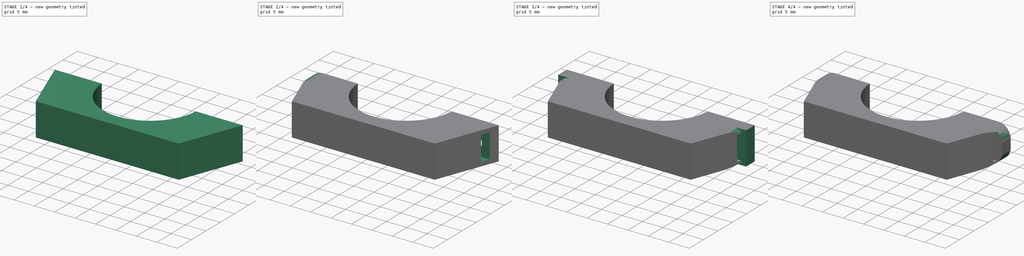
[diagram: build sequence overview — one tinted view per stage of 4, left to right]
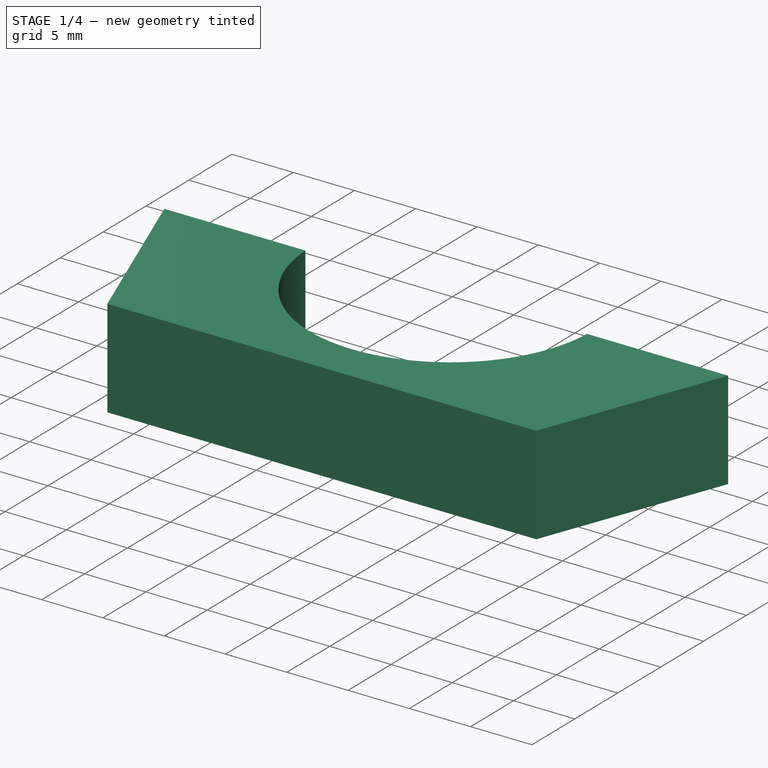
[diagram: stage 1 of 4 — iso view after this stage's code; geometry added in this stage tinted green]
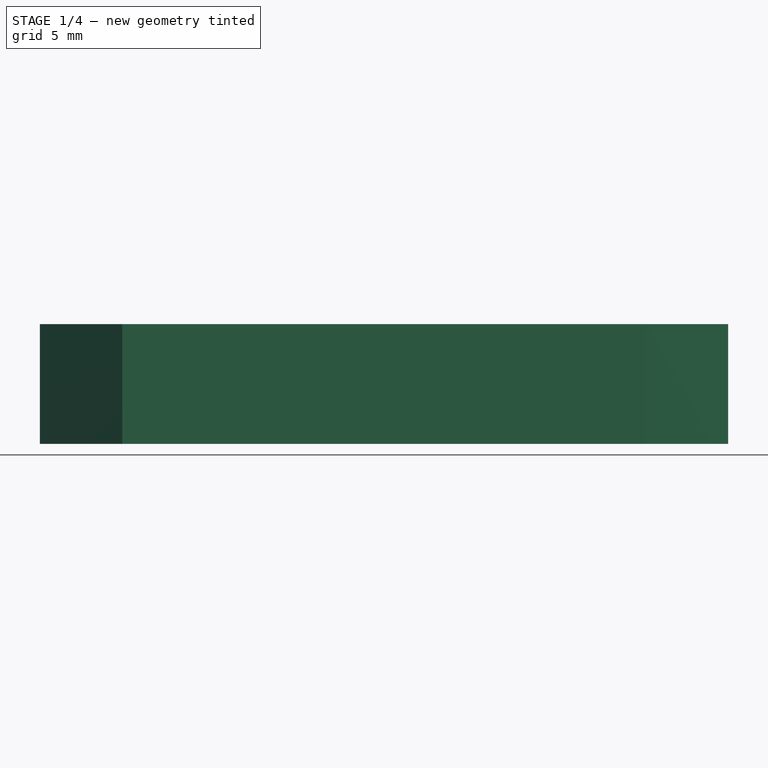
[diagram: stage 1 of 4 — front view after this stage's code; geometry added in this stage tinted green]
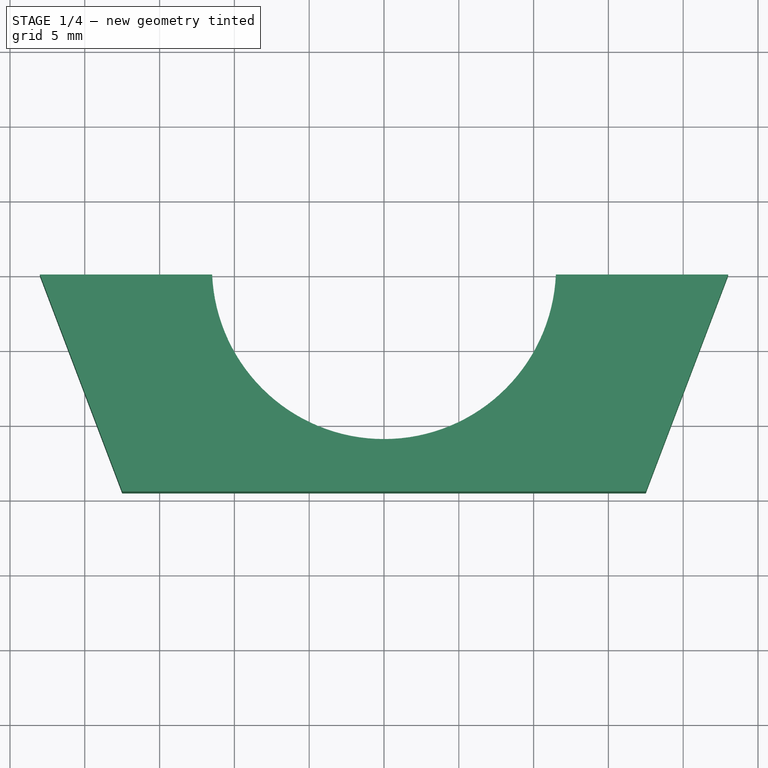
[diagram: stage 1 of 4 — top view after this stage's code; geometry added in this stage tinted green]
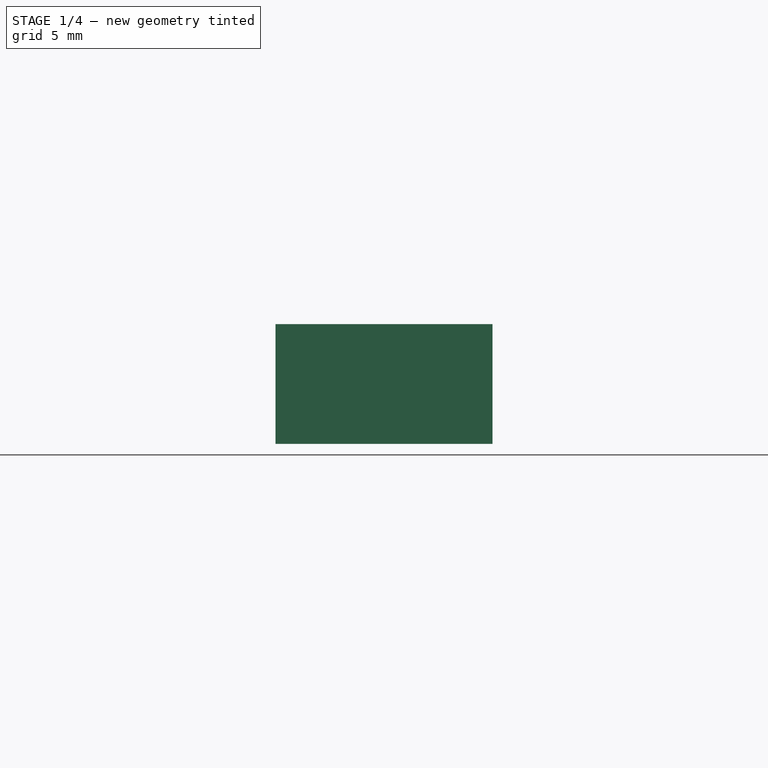
[diagram: stage 1 of 4 — right view after this stage's code; geometry added in this stage tinted green]
FCSTD DOCUMENT  (FreeCAD 0.18R4 (GitTag))
Label: handlebar clamp
License: All rights reserved
LicenseURL: http://en.wikipedia.org/wiki/All_rights_reserved
objects: Sketcher::SketchObject×10, PartDesign::Pocket×8, PartDesign::Pad×2, PartDesign::Body×2, PartDesign::Fillet×1
note: 33 computed .brp shape members not serialized (recipe doc carries the construction recipe); baked Part::Feature solids carry a one-line shape summary decoded from their .brp

FEATURE [PartDesign::Body] Body  label="lower"
  Group = -> [Sketch,Pad,Sketch001,Pocket,Sketch002,Pocket001,Fillet]
  Origin = -> Origin
  Placement = pos=(0,0,0) rot=(0,0,1;3.14159rad)
  Tip = -> Fillet
FEATURE [Sketcher::SketchObject] Sketch003
  MapMode = 5
  Support = -> [XY_Plane001]
  expr: Constraints[22] = Constraints[0] / 2 + 3mm
  expr: Constraints[17] = Sketch.Constraints[35]
  expr: Constraints[0] = Sketch.Constraints[0]
  expr: Constraints[6] = Sketch.Constraints[6]
  expr: Constraints[2] = Sketch.Constraints[2]
  sketch-geometry (9):
    g0: Circle [constr] CenterX=0 CenterY=0.5 CenterZ=0 NormalX=0 NormalY=0 NormalZ=1 AngleXU=0 Radius=11.5
    g1: LineSegment [constr] StartX=-23 StartY=11.5 StartZ=0 EndX=-23 EndY=-11.5 EndZ=0
    g2: LineSegment [constr] StartX=23 StartY=11.5 StartZ=0 EndX=23 EndY=-11.5 EndZ=0
    g3: LineSegment StartX=-11.4891 StartY=0 StartZ=0 EndX=-23 EndY=0 EndZ=0
    g4: LineSegment StartX=11.4891 StartY=2.5e-15 StartZ=0 EndX=23 EndY=2.5e-15 EndZ=0
    g5: ArcOfCircle CenterX=0 CenterY=0.5 CenterZ=0 NormalX=0 NormalY=0 NormalZ=1 AngleXU=0 Radius=11.5 StartAngle=3.18508 EndAngle=6.23969
    g6: LineSegment StartX=-23 StartY=0 StartZ=0 EndX=-17.5 EndY=-14.5 EndZ=0
    g7: LineSegment StartX=23 StartY=2.5e-15 StartZ=0 EndX=17.5 EndY=-14.5 EndZ=0
    g8: LineSegment StartX=17.5 StartY=-14.5 StartZ=0 EndX=-17.5 EndY=-14.5 EndZ=0
  constraints (26):
    c: Diameter(g0) = 23
    c: Vertical(g1)
    c: DistanceX(g1,g-1) = 23
    c: Horizontal(g1,g2)
    c: Symmetric(g1,g2,g-1)
    c: Symmetric(g1,g2,g-1)
    c: DistanceY(g2,g2) = 23
    c: PointOnObject(g3,g0)
    c: PointOnObject(g3,g1)
    c: Horizontal(g3)
    c: PointOnObject(g3,g-1)
    c: PointOnObject(g4,g2)
    c: PointOnObject(g4,g-1)
    c: Horizontal(g4)
    c: Coincident(g5,g0)
    c: Coincident(g5,g3)
    c: Coincident(g5,g4)
    c: DistanceY(g-1,g5) = 0.5
    c: Coincident(g6,g3)
    c: Coincident(g7,g4)
    c: Coincident(g8,g7)
    c: Coincident(g8,g6)
    c: DistanceY(g7,g7) = 14.5
    c: DistanceX(g8,g8) = 35
    c: Symmetric(g7,g6,g-2)
    c: Vertical(g5,g-1)
FEATURE [PartDesign::Pad] Pad001
  Length = 8
  Length2 = 100
  Profile = -> Sketch003
  Refine = true
  Type = 0
FEATURE [Sketcher::SketchObject] Sketch004
  ExternalGeometry = -> [Pad001]
  MapMode = 5
  Placement = pos=(0,2.5e-15,0) rot=(0,0.707107,0.707107;3.14159rad)
  Support = -> [Pad001]
  sketch-geometry (7):
    g0: LineSegment [constr] StartX=23 StartY=8 StartZ=0 EndX=14.07 EndY=8 EndZ=0
    g1: LineSegment [constr] StartX=14.07 StartY=8 StartZ=0 EndX=14.07 EndY=0 EndZ=0
    g2: LineSegment [constr] StartX=14.07 StartY=0 StartZ=0 EndX=23 EndY=0 EndZ=0
    g3: LineSegment [constr] StartX=23 StartY=0 StartZ=0 EndX=23 EndY=8 EndZ=0
    g4: LineSegment [constr] StartX=14.07 StartY=8 StartZ=0 EndX=23 EndY=0 EndZ=0
    g5: LineSegment [constr] StartX=23 StartY=8 StartZ=0 EndX=14.07 EndY=0 EndZ=0
    g6: Circle CenterX=18.535 CenterY=4 CenterZ=0 NormalX=0 NormalY=0 NormalZ=1 AngleXU=0 Radius=1.75
  constraints (18):
    c: Coincident(g0,g1)
    c: Coincident(g1,g2)
    c: Coincident(g2,g3)
    c: Coincident(g3,g0)
    c: Horizontal(g0)
    c: Horizontal(g2)
    c: Vertical(g1)
    c: Vertical(g3)
    c: Coincident(g0,g-3)
    c: PointOnObject(g1,g-1)
    c: DistanceX(g0,g0) = 8.93
    c: Coincident(g4,g0)
    c: Coincident(g4,g2)
    c: Coincident(g5,g0)
    c: Coincident(g5,g1)
    c: PointOnObject(g6,g4)
    c: PointOnObject(g6,g5)
    c: Diameter(g6) = 3.5
FEATURE [Sketcher::SketchObject] Sketch005
  ExternalGeometry = -> [Pad001]
  MapMode = 5
  Placement = pos=(0,2.5e-15,0) rot=(0,0.707107,0.707107;3.14159rad)
  Support = -> [Pad001]
  sketch-geometry (7):
    g0: LineSegment [constr] StartX=-23 StartY=8 StartZ=0 EndX=-14.07 EndY=8 EndZ=0
    g1: LineSegment [constr] StartX=-14.07 StartY=8 StartZ=0 EndX=-14.07 EndY=0 EndZ=0
    g2: LineSegment [constr] StartX=-14.07 StartY=0 StartZ=0 EndX=-23 EndY=0 EndZ=0
    g3: LineSegment [constr] StartX=-23 StartY=0 StartZ=0 EndX=-23 EndY=8 EndZ=0
    g4: LineSegment [constr] StartX=-23 StartY=8 StartZ=0 EndX=-14.07 EndY=0 EndZ=0
    g5: LineSegment [constr] StartX=-23 StartY=0 StartZ=0 EndX=-14.07 EndY=8 EndZ=0
    g6: Circle CenterX=-18.535 CenterY=4 CenterZ=0 NormalX=0 NormalY=0 NormalZ=1 AngleXU=0 Radius=1.75
  constraints (18):
    c: Coincident(g0,g1)
    c: Coincident(g1,g2)
    c: Coincident(g2,g3)
    c: Coincident(g3,g0)
    c: Horizontal(g0)
    c: Horizontal(g2)
    c: Vertical(g1)
    c: Vertical(g3)
    c: Coincident(g0,g-3)
    c: PointOnObject(g1,g-1)
    c: DistanceX(g0,g0) = 8.93
    c: Coincident(g4,g0)
    c: Coincident(g4,g1)
    c: Coincident(g5,g2)
    c: Coincident(g5,g0)
    c: PointOnObject(g6,g4)
    c: PointOnObject(g6,g5)
    c: Diameter(g6) = 3.5
FEATURE [PartDesign::Pocket] Pocket002
  BaseFeature = -> Pad001
  Length = 5
  Length2 = 100
  Profile = -> Sketch004
  Refine = true
  Type = 0
FEATURE [PartDesign::Pocket] Pocket003
  BaseFeature = -> Pocket002
  Length = 5
  Length2 = 100
  Profile = -> Sketch005
  Refine = true
  Type = 0
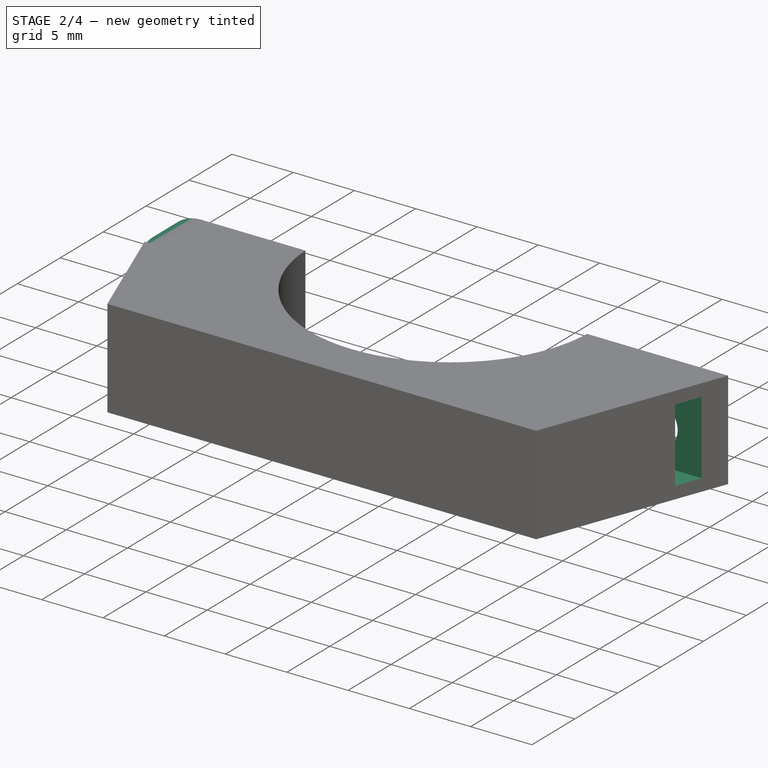
[diagram: stage 2 of 4 — iso view after this stage's code; geometry added in this stage tinted green]
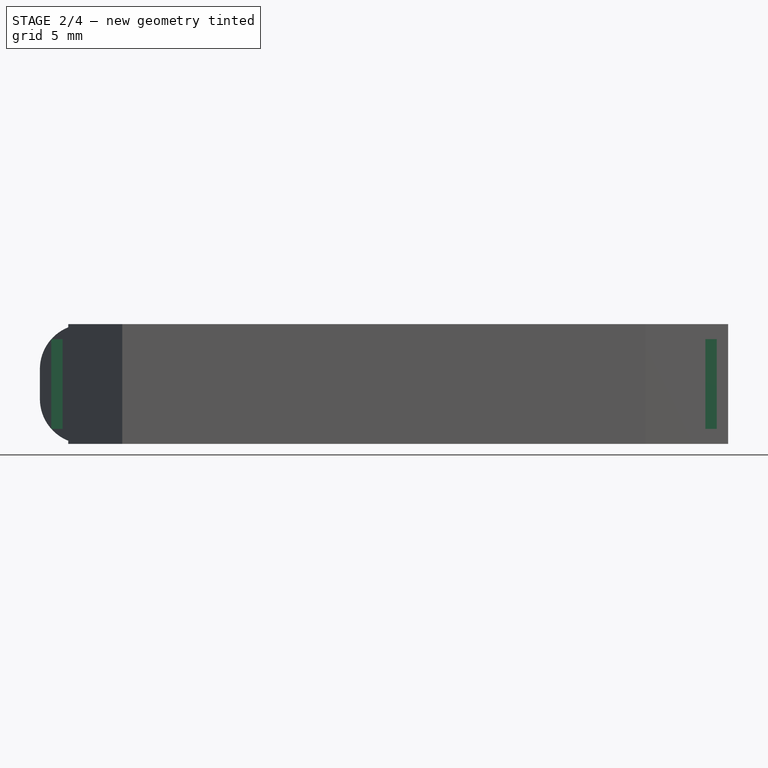
[diagram: stage 2 of 4 — front view after this stage's code; geometry added in this stage tinted green]
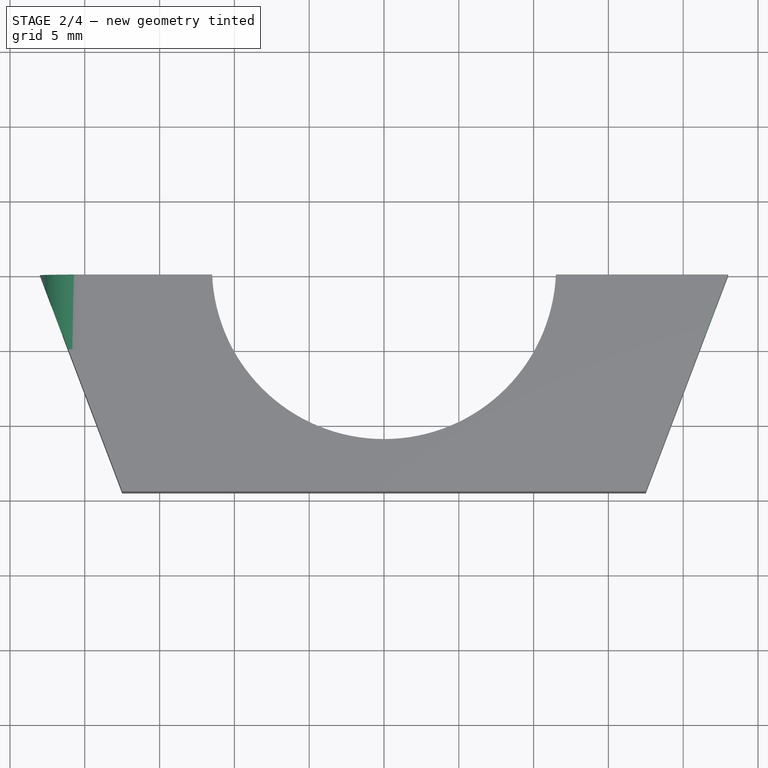
[diagram: stage 2 of 4 — top view after this stage's code; geometry added in this stage tinted green]
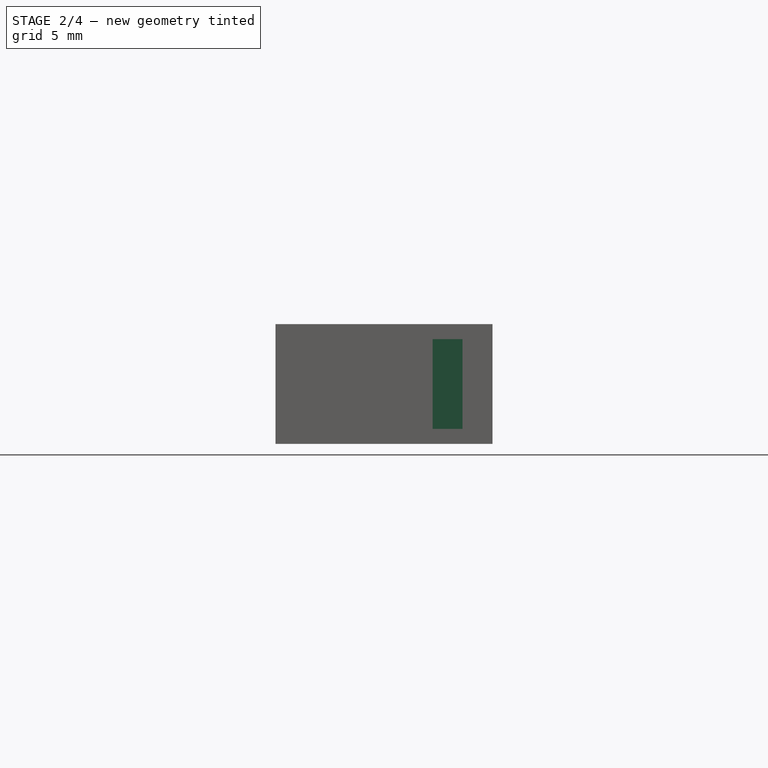
[diagram: stage 2 of 4 — right view after this stage's code; geometry added in this stage tinted green]
FEATURE [Sketcher::SketchObject] Sketch006
  AttachmentOffset = pos=(0,0,-18.5) rot=(0,0,1;0rad)
  ExternalGeometry = -> [Pocket003]
  MapMode = 5
  Placement = pos=(-18.5,4.1e-15,-4.1e-15) rot=(0.57735,0.57735,0.57735;2.0944rad)
  Support = -> [YZ_Plane001]
  sketch-geometry (4):
    g0: LineSegment StartX=-4 StartY=7 StartZ=0 EndX=-2 EndY=7 EndZ=0
    g1: LineSegment StartX=-2 StartY=7 StartZ=0 EndX=-2 EndY=1 EndZ=0
    g2: LineSegment StartX=-2 StartY=1 StartZ=0 EndX=-4 EndY=1 EndZ=0
    g3: LineSegment StartX=-4 StartY=1 StartZ=0 EndX=-4 EndY=7 EndZ=0
  constraints (12):
    c: Coincident(g0,g1)
    c: Coincident(g1,g2)
    c: Coincident(g2,g3)
    c: Coincident(g3,g0)
    c: Horizontal(g0)
    c: Horizontal(g2)
    c: Vertical(g1)
    c: Vertical(g3)
    c: DistanceY(g1,g1) = 6
    c: DistanceX(g0,g0) = 2
    c: DistanceY(g-1,g1) = 1
    c: DistanceX(g1,g-1) = 2
FEATURE [Sketcher::SketchObject] Sketch007
  AttachmentOffset = pos=(0,0,18.5) rot=(0,0,1;0rad)
  ExternalGeometry = -> [Pocket003]
  MapMode = 5
  Placement = pos=(18.5,-4.1e-15,4.1e-15) rot=(0.57735,0.57735,0.57735;2.0944rad)
  Support = -> [YZ_Plane001]
  expr: Constraints[10] = Sketch006.Constraints[10]
  expr: Constraints[9] = Sketch006.Constraints[9]
  expr: Constraints[8] = Sketch006.Constraints[8]
  sketch-geometry (4):
    g0: LineSegment StartX=-4 StartY=7 StartZ=0 EndX=-2 EndY=7 EndZ=0
    g1: LineSegment StartX=-2 StartY=7 StartZ=0 EndX=-2 EndY=1 EndZ=0
    g2: LineSegment StartX=-2 StartY=1 StartZ=0 EndX=-4 EndY=1 EndZ=0
    g3: LineSegment StartX=-4 StartY=1 StartZ=0 EndX=-4 EndY=7 EndZ=0
  constraints (12):
    c: Coincident(g0,g1)
    c: Coincident(g1,g2)
    c: Coincident(g2,g3)
    c: Coincident(g3,g0)
    c: Horizontal(g0)
    c: Horizontal(g2)
    c: Vertical(g1)
    c: Vertical(g3)
    c: DistanceY(g1,g1) = 6
    c: DistanceX(g0,g0) = 2
    c: DistanceY(g-1,g1) = 1
    c: DistanceX(g1,g-1) = 2
FEATURE [PartDesign::Pocket] Pocket004
  BaseFeature = -> Pocket003
  Length = 6
  Length2 = 3
  Profile = -> Sketch006
  Refine = true
  Type = 4
FEATURE [PartDesign::Pocket] Pocket005
  BaseFeature = -> Pocket004
  Length = 3
  Length2 = 6
  Profile = -> Sketch007
  Refine = true
  Type = 4
FEATURE [Sketcher::SketchObject] Sketch008
  ExternalGeometry = -> [Pocket005]
  MapMode = 5
  Placement = pos=(0,2.5e-15,0) rot=(0,0.707107,0.707107;3.14159rad)
  Support = -> [Pocket005]
  sketch-geometry (10):
    g0: ArcOfCircle CenterX=20 CenterY=5 CenterZ=0 NormalX=0 NormalY=0 NormalZ=1 AngleXU=0 Radius=3 StartAngle=0 EndAngle=1.5708
    g1: LineSegment StartX=23 StartY=5 StartZ=0 EndX=25 EndY=5 EndZ=0
    g2: LineSegment StartX=25 StartY=5 StartZ=0 EndX=25 EndY=10 EndZ=0
    g3: LineSegment StartX=25 StartY=10 StartZ=0 EndX=20 EndY=10 EndZ=0
    g4: LineSegment StartX=20 StartY=10 StartZ=0 EndX=20 EndY=8 EndZ=0
    g5: ArcOfCircle CenterX=20 CenterY=3 CenterZ=0 NormalX=0 NormalY=0 NormalZ=1 AngleXU=0 Radius=3 StartAngle=4.71239 EndAngle=6.28319
    g6: LineSegment StartX=23 StartY=3 StartZ=0 EndX=25 EndY=3 EndZ=0
    g7: LineSegment StartX=25 StartY=3 StartZ=0 EndX=25 EndY=-2 EndZ=0
    g8: LineSegment StartX=25 StartY=-2 StartZ=0 EndX=20 EndY=-2 EndZ=0
    g9: LineSegment StartX=20 StartY=-2 StartZ=0 EndX=20 EndY=0 EndZ=0
  constraints (32):
    c: PointOnObject(g0,g-3)
    c: Vertical(g0,g0)
    c: Horizontal(g0,g0)
    c: Vertical(g0,g-3)
    c: Coincident(g1,g0)
    c: Horizontal(g1)
    c: Coincident(g2,g1)
    c: Vertical(g2)
    c: Coincident(g3,g2)
    c: Horizontal(g3)
    c: Coincident(g4,g3)
    c: Coincident(g4,g0)
    c: PointOnObject(g5,g-4)
    c: PointOnObject(g5,g-1)
    c: Tangent(g5,g-1)
    c: Tangent(g5,g-4)
    c: Equal(g4,g1)
    c: Equal(g2,g3)
    c: DistanceY(g2,g2) = 5
    c: Coincident(g5,g6)
    c: Coincident(g6,g7)
    c: Vertical(g7)
    c: Coincident(g7,g8)
    c: Horizontal(g8)
    c: Coincident(g8,g9)
    c: Coincident(g9,g5)
    c: Vertical(g9)
    c: Equal(g9,g6)
    c: Equal(g7,g8)
    c: Equal(g8,g2)
    c: Radius(g0) = 3
    c: Radius(g5) = 3
FEATURE [PartDesign::Pocket] Pocket006
  BaseFeature = -> Pocket005
  Length = 5
  Length2 = 100
  Profile = -> Sketch008
  Refine = true
  Type = 0
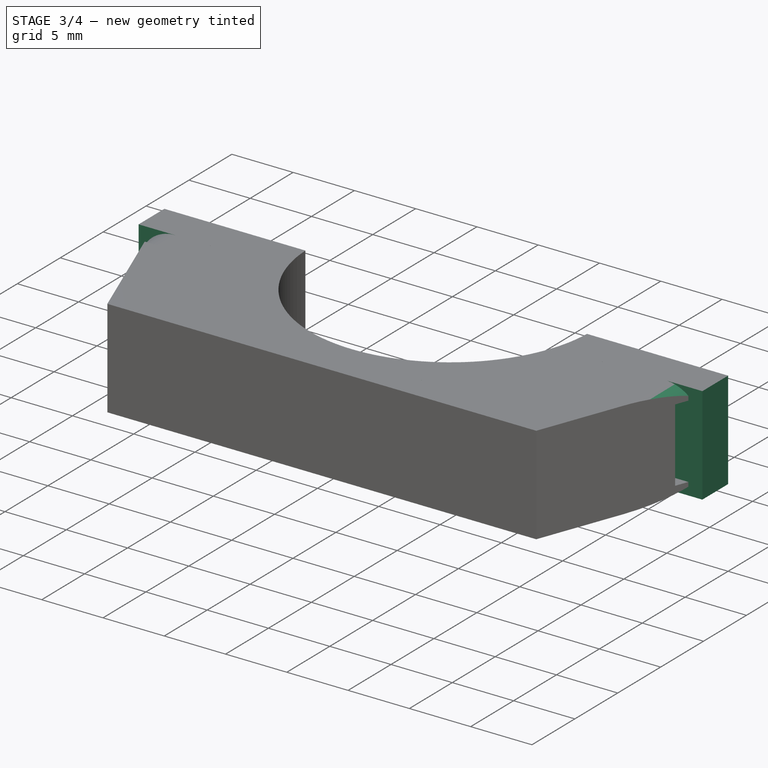
[diagram: stage 3 of 4 — iso view after this stage's code; geometry added in this stage tinted green]
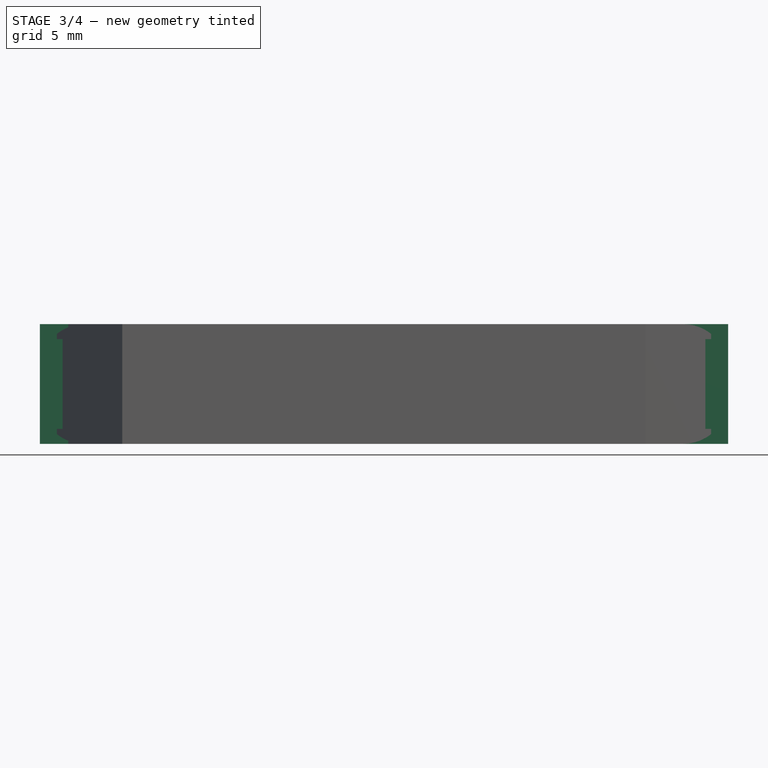
[diagram: stage 3 of 4 — front view after this stage's code; geometry added in this stage tinted green]
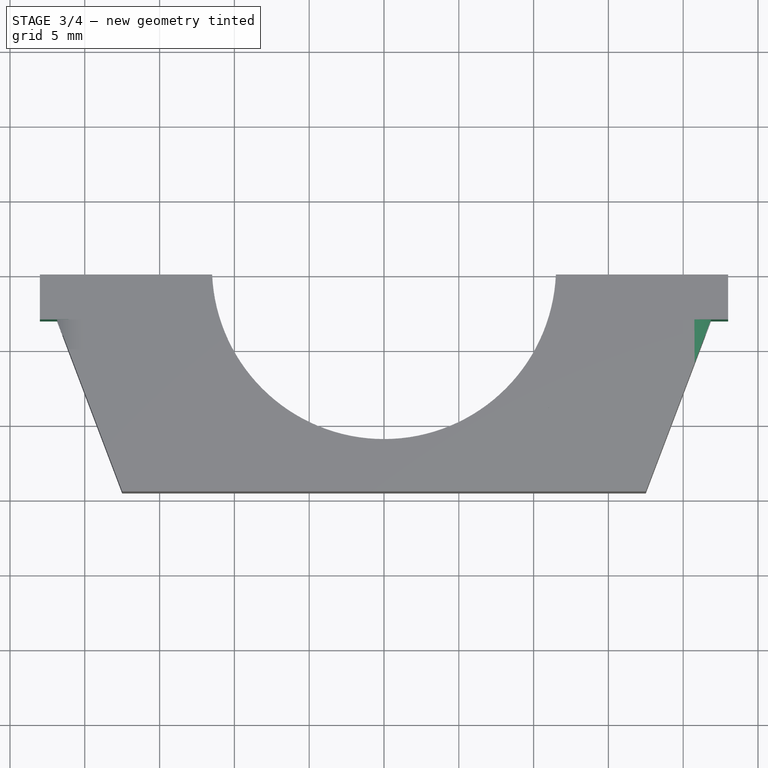
[diagram: stage 3 of 4 — top view after this stage's code; geometry added in this stage tinted green]
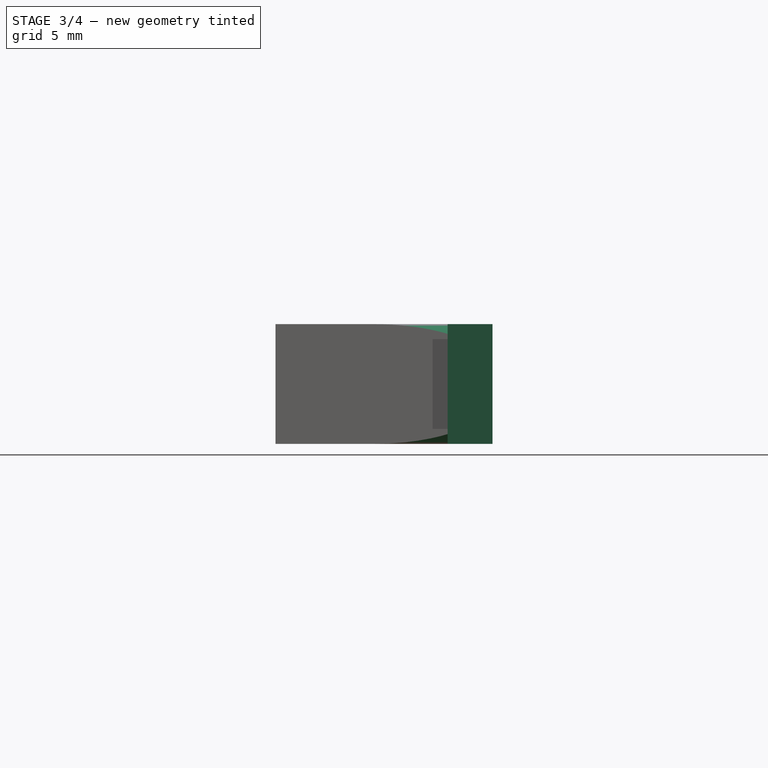
[diagram: stage 3 of 4 — right view after this stage's code; geometry added in this stage tinted green]
FEATURE [Sketcher::SketchObject] Sketch
  MapMode = 5
  Support = -> [XY_Plane]
  expr: Constraints[6] = Constraints[0]
  expr: Constraints[2] = Constraints[0] / 2 + 3.5mm + 8mm
  sketch-geometry (12):
    g0: Circle [constr] CenterX=3.1e-15 CenterY=0.5 CenterZ=0 NormalX=0 NormalY=0 NormalZ=1 AngleXU=0 Radius=11.5
    g1: LineSegment [constr] StartX=-23 StartY=11.5 StartZ=0 EndX=-23 EndY=-11.5 EndZ=0
    g2: LineSegment [constr] StartX=23 StartY=11.5 StartZ=0 EndX=23 EndY=-11.5 EndZ=0
    g3: LineSegment StartX=-11.4891 StartY=1.7e-15 StartZ=0 EndX=-23 EndY=1.7e-15 EndZ=0
    g4: LineSegment StartX=-23 StartY=1.7e-15 StartZ=0 EndX=-23 EndY=-3 EndZ=0
    g5: LineSegment StartX=-23 StartY=-3 StartZ=0 EndX=-14.0712 EndY=-3 EndZ=0
    g6: LineSegment StartX=11.4891 StartY=2.6e-15 StartZ=0 EndX=23 EndY=2.6e-15 EndZ=0
    g7: LineSegment StartX=23 StartY=2.6e-15 StartZ=0 EndX=23 EndY=-3 EndZ=0
    g8: LineSegment StartX=23 StartY=-3 StartZ=0 EndX=14.0712 EndY=-3 EndZ=0
    g9: ArcOfCircle CenterX=3.1e-15 CenterY=0.5 CenterZ=0 NormalX=0 NormalY=0 NormalZ=1 AngleXU=0 Radius=11.5 StartAngle=3.18508 EndAngle=6.23969
    g10: ArcOfCircle CenterX=3.1e-15 CenterY=0.5 CenterZ=0 NormalX=0 NormalY=0 NormalZ=1 AngleXU=0 Radius=14.5 StartAngle=3.38538 EndAngle=6.0394
    g11: LineSegment [constr] StartX=11.16 StartY=-2.27586 StartZ=0 EndX=14.0712 EndY=-3 EndZ=0
  constraints (36):
    c: Diameter(g0) = 23
    c: Vertical(g1)
    c: DistanceX(g1,g-1) = 23
    c: Horizontal(g1,g2)
    c: Symmetric(g1,g2,g-1)
    c: Symmetric(g1,g2,g-1)
    c: DistanceY(g2,g2) = 23
    c: PointOnObject(g3,g0)
    c: PointOnObject(g3,g1)
    c: Horizontal(g3)
    c: PointOnObject(g3,g-1)
    c: Coincident(g4,g3)
    c: PointOnObject(g4,g1)
    c: Horizontal(g5)
    c: PointOnObject(g6,g2)
    c: PointOnObject(g6,g-1)
    c: Horizontal(g6)
    c: Coincident(g7,g6)
    c: PointOnObject(g7,g2)
    c: Equal(g7,g4)
    c: Coincident(g8,g7)
    c: Horizontal(g8)
    c: Equal(g8,g5)
    c: Coincident(g4,g5)
    c: DistanceY(g4,g4) = 3
    c: Coincident(g9,g0)
    c: Coincident(g9,g3)
    c: Coincident(g9,g6)
    c: Coincident(g10,g9)
    c: Coincident(g10,g5)
    c: Coincident(g10,g8)
    c: PointOnObject(g11,g9)
    c: Perpendicular(g9,g11)
    c: Distance(g11) = 3
    c: Coincident(g11,g8)
    c: DistanceY(g-1,g9) = 0.5
FEATURE [PartDesign::Pad] Pad
  Length = 8
  Length2 = 100
  Profile = -> Sketch
  Refine = true
  Type = 0
FEATURE [Sketcher::SketchObject] Sketch009
  ExternalGeometry = -> [Pocket006]
  MapMode = 5
  Placement = pos=(0,2.5e-15,0) rot=(0,0.707107,0.707107;3.14159rad)
  Support = -> [Pocket006]
  sketch-geometry (10):
    g0: ArcOfCircle CenterX=-20 CenterY=5 CenterZ=0 NormalX=0 NormalY=0 NormalZ=1 AngleXU=0 Radius=3 StartAngle=1.5708 EndAngle=3.14159
    g1: LineSegment StartX=-20 StartY=8 StartZ=0 EndX=-20 EndY=10 EndZ=0
    g2: LineSegment StartX=-20 StartY=10 StartZ=0 EndX=-25 EndY=10 EndZ=0
    g3: LineSegment StartX=-25 StartY=10 StartZ=0 EndX=-25 EndY=5 EndZ=0
    g4: LineSegment StartX=-25 StartY=5 StartZ=0 EndX=-23 EndY=5 EndZ=0
    g5: ArcOfCircle CenterX=-20 CenterY=3 CenterZ=0 NormalX=0 NormalY=0 NormalZ=1 AngleXU=0 Radius=3 StartAngle=3.14159 EndAngle=4.71239
    g6: LineSegment StartX=-20 StartY=0 StartZ=0 EndX=-20 EndY=-2 EndZ=0
    g7: LineSegment StartX=-20 StartY=-2 StartZ=0 EndX=-25 EndY=-2 EndZ=0
    g8: LineSegment StartX=-25 StartY=-2 StartZ=0 EndX=-25 EndY=3 EndZ=0
    g9: LineSegment StartX=-25 StartY=3 StartZ=0 EndX=-23 EndY=3 EndZ=0
  constraints (32):
    c: PointOnObject(g0,g-3)
    c: PointOnObject(g0,g-4)
    c: Radius(g0) = 3
    c: Vertical(g0,g0)
    c: Horizontal(g0,g0)
    c: Coincident(g1,g0)
    c: Vertical(g1)
    c: Coincident(g2,g1)
    c: Horizontal(g2)
    c: Coincident(g3,g2)
    c: Vertical(g3)
    c: Coincident(g4,g3)
    c: Coincident(g4,g0)
    c: Equal(g4,g1)
    c: Equal(g2,g3)
    c: DistanceX(g2,g2) = 5
    c: PointOnObject(g5,g-4)
    c: PointOnObject(g5,g-1)
    c: Radius(g5) = 3
    c: Vertical(g5,g5)
    c: Horizontal(g5,g5)
    c: Coincident(g5,g6)
    c: Coincident(g6,g7)
    c: Horizontal(g7)
    c: Coincident(g7,g8)
    c: Vertical(g8)
    c: Coincident(g8,g9)
    c: Horizontal(g9)
    c: Equal(g9,g6)
    c: Equal(g7,g8)
    c: Equal(g8,g3)
    c: Coincident(g9,g5)
FEATURE [PartDesign::Pocket] Pocket007
  BaseFeature = -> Pocket006
  Length = 5
  Length2 = 100
  Profile = -> Sketch009
  Refine = true
  Type = 1
FEATURE [PartDesign::Body] Body001  label="upper"
  Group = -> [Sketch003,Pad001,Sketch004,Sketch005,Pocket002,Pocket003,Sketch006,Sketch007,Pocket004,Pocket005,Sketch008,Pocket006,Sketch009,Pocket007]
  Origin = -> Origin001
  Tip = -> Pocket007
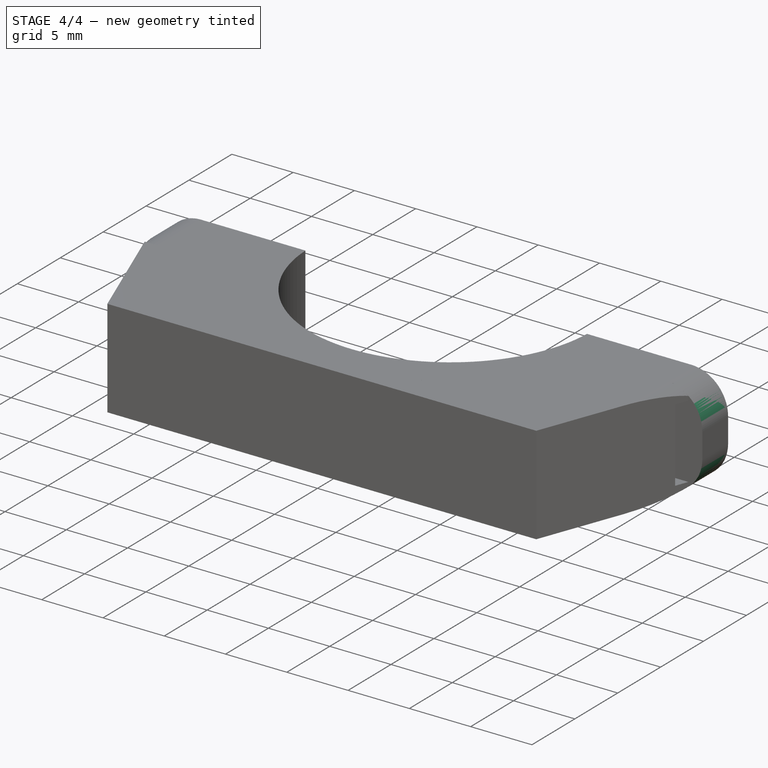
[diagram: stage 4 of 4 — iso view after this stage's code; geometry added in this stage tinted green]
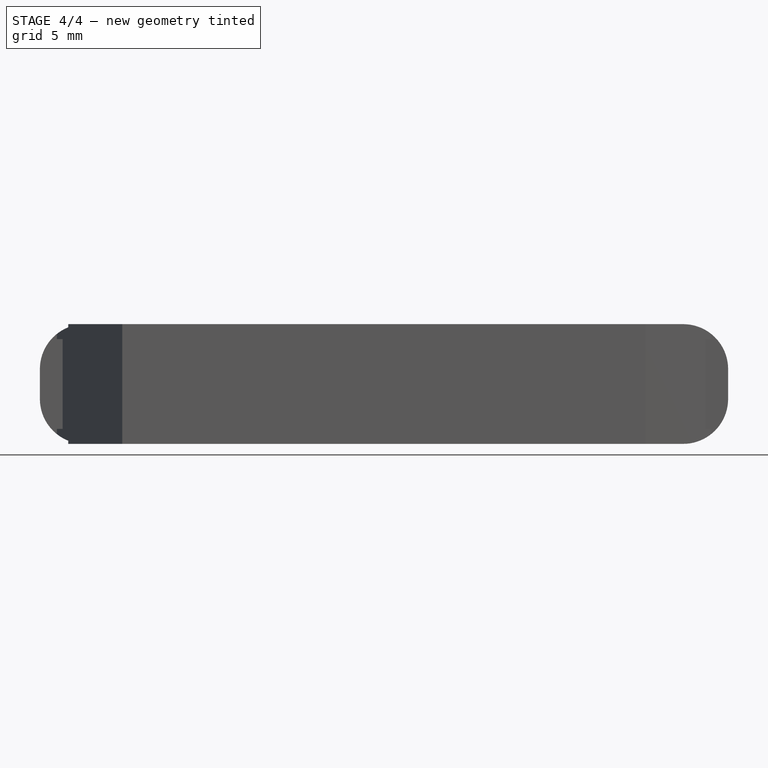
[diagram: stage 4 of 4 — front view after this stage's code; geometry added in this stage tinted green]
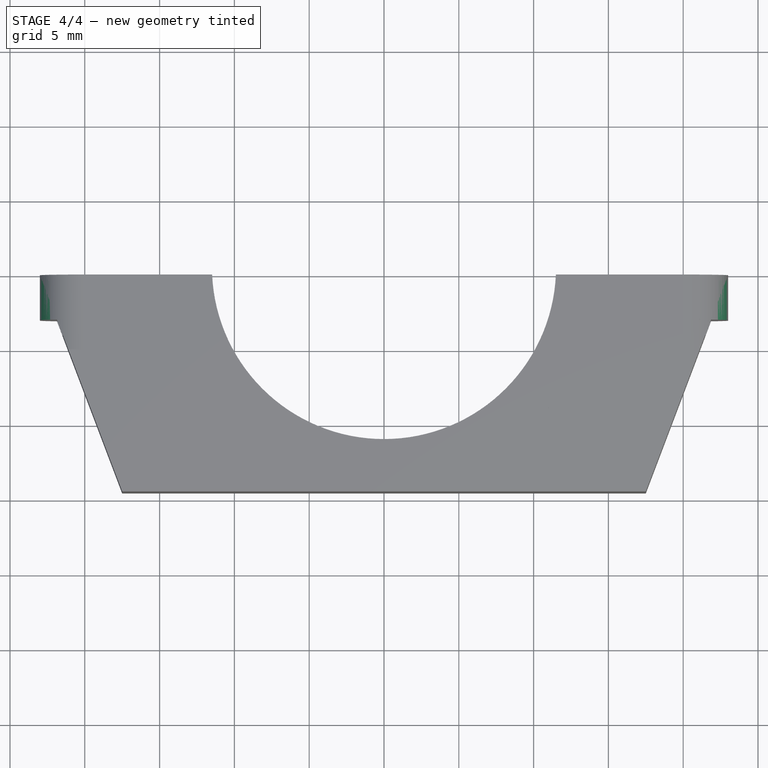
[diagram: stage 4 of 4 — top view after this stage's code; geometry added in this stage tinted green]
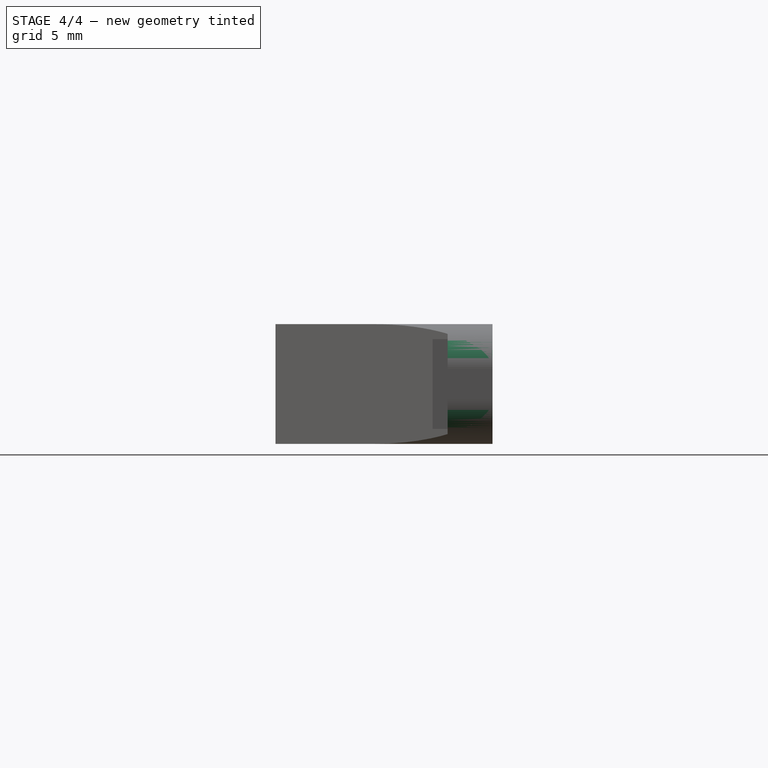
[diagram: stage 4 of 4 — right view after this stage's code; geometry added in this stage tinted green]
FEATURE [Sketcher::SketchObject] Sketch001
  ExternalGeometry = -> [Pad]
  MapMode = 5
  Placement = pos=(0,-3,0) rot=(1,0,0;1.5708rad)
  Support = -> [Pad]
  sketch-geometry (3):
    g0: LineSegment [constr] StartX=14.0712 StartY=8 StartZ=0 EndX=23 EndY=9e-16 EndZ=0
    g1: LineSegment [constr] StartX=23 StartY=8 StartZ=0 EndX=14.0712 EndY=9e-16 EndZ=0
    g2: Circle CenterX=18.5356 CenterY=4 CenterZ=0 NormalX=0 NormalY=0 NormalZ=1 AngleXU=0 Radius=1.75
  constraints (7):
    c: Coincident(g0,g-4)
    c: Coincident(g0,g-3)
    c: Coincident(g1,g-3)
    c: Coincident(g1,g-4)
    c: PointOnObject(g2,g0)
    c: Diameter(g2) = 3.5
    c: PointOnObject(g2,g1)
FEATURE [PartDesign::Pocket] Pocket
  BaseFeature = -> Pad
  Length = 5
  Length2 = 100
  Profile = -> Sketch001
  Refine = true
  Type = 1
FEATURE [Sketcher::SketchObject] Sketch002
  ExternalGeometry = -> [Pocket]
  MapMode = 5
  Placement = pos=(0,-3,0) rot=(1,0,0;1.5708rad)
  Support = -> [Pocket]
  sketch-geometry (3):
    g0: LineSegment [constr] StartX=-23 StartY=8 StartZ=0 EndX=-14.0712 EndY=0 EndZ=0
    g1: LineSegment [constr] StartX=-14.0712 StartY=8 StartZ=0 EndX=-23 EndY=0 EndZ=0
    g2: Circle CenterX=-18.5356 CenterY=4 CenterZ=0 NormalX=0 NormalY=0 NormalZ=1 AngleXU=0 Radius=1.75
  constraints (7):
    c: Coincident(g0,g-3)
    c: Coincident(g0,g-4)
    c: Coincident(g1,g-4)
    c: Coincident(g1,g-3)
    c: PointOnObject(g2,g0)
    c: PointOnObject(g2,g1)
    c: Diameter(g2) = 3.5
FEATURE [PartDesign::Pocket] Pocket001
  BaseFeature = -> Pocket
  Length = 5
  Length2 = 100
  Profile = -> Sketch002
  Refine = true
  Type = 1
FEATURE [PartDesign::Fillet] Fillet
  Base = -> Pocket001 [Edge22,Edge17,Edge18,Edge13]
  BaseFeature = -> Pocket001
  Radius = 3
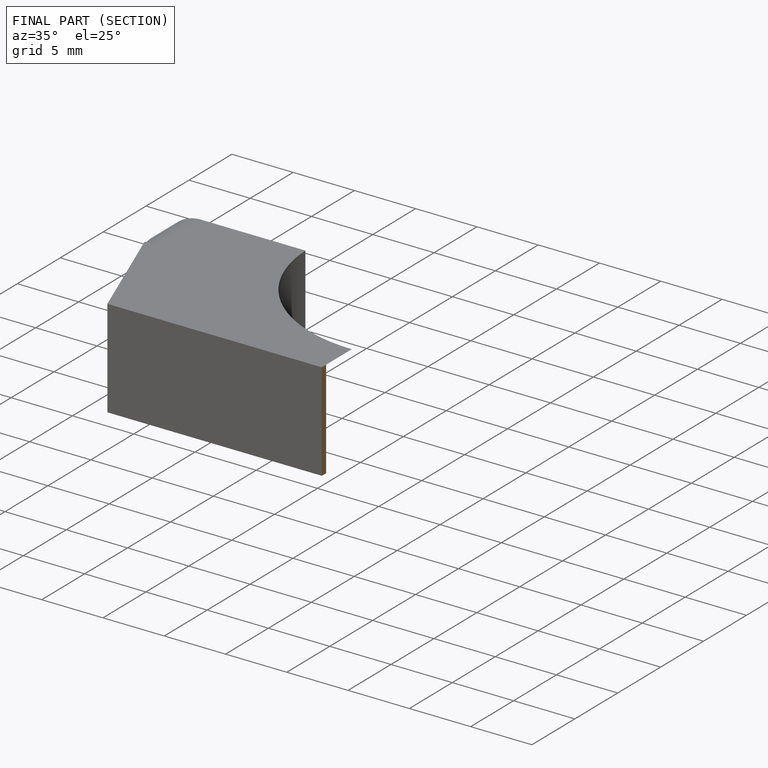
[diagram: finished part — half-section view (interior)]
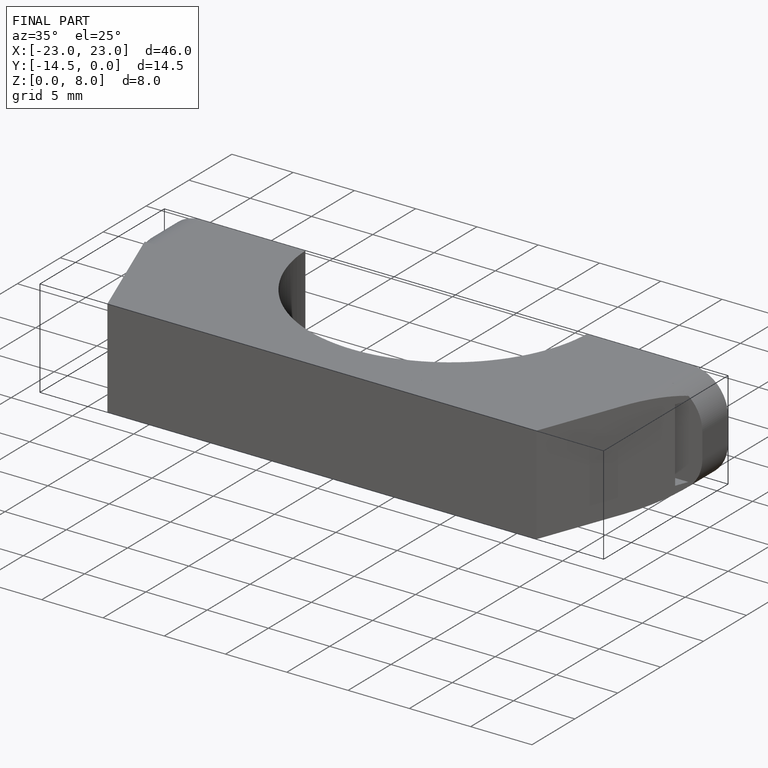
[diagram: finished part — iso view with bounding-box wireframe]
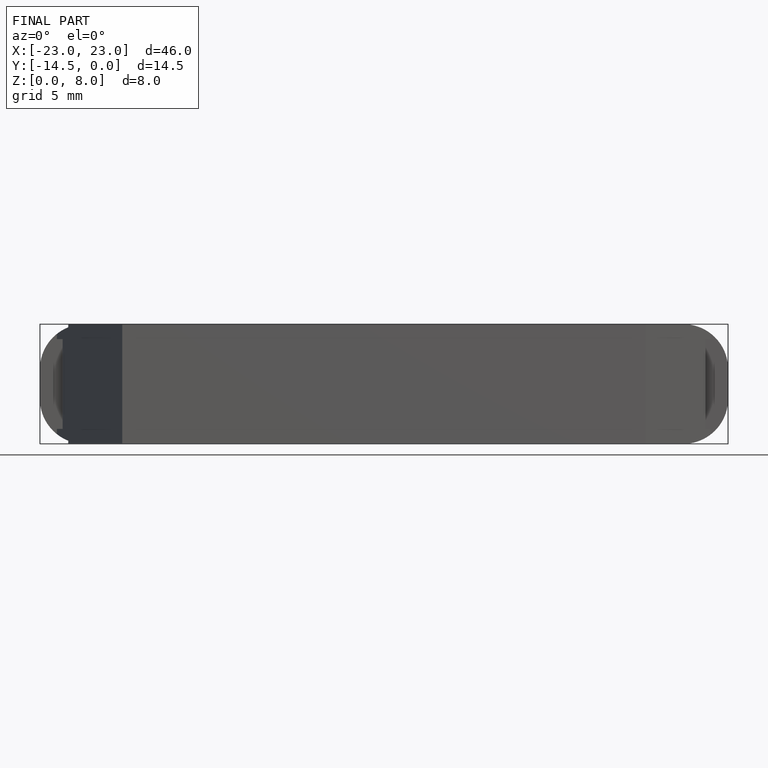
[diagram: finished part — front view with bounding-box wireframe]
